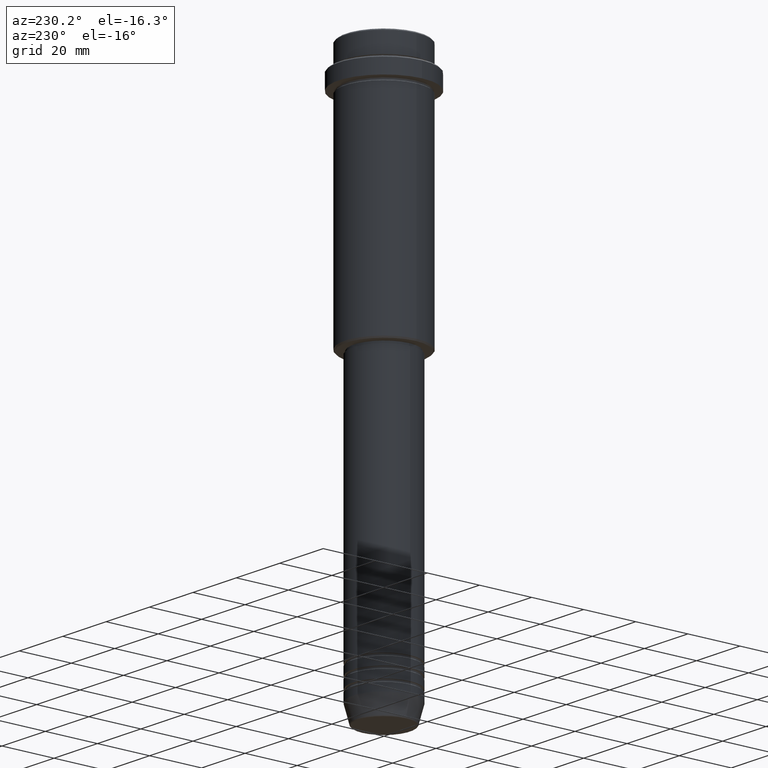
[diagram: clean part render]
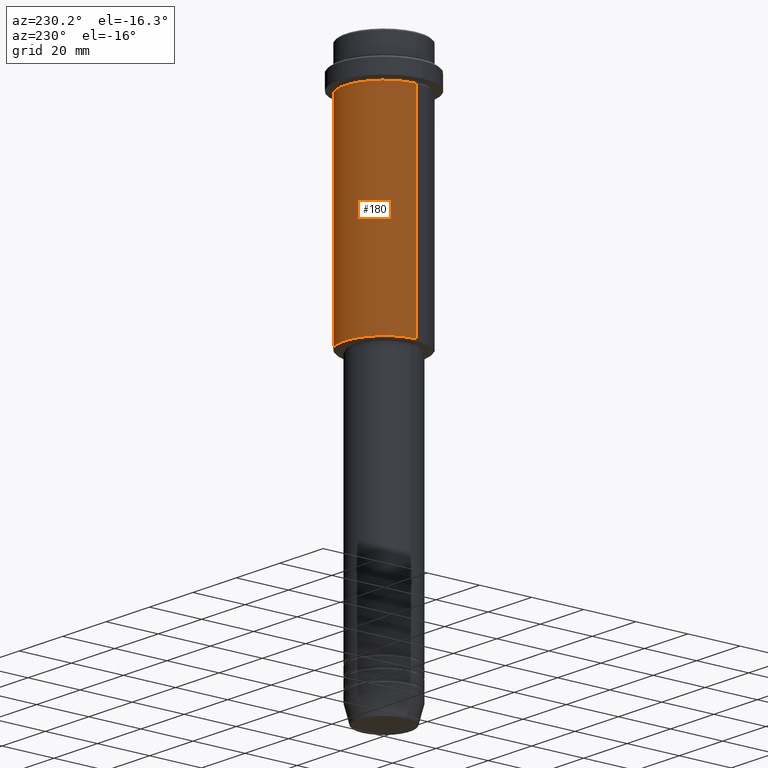
[diagram: same view with one face highlighted and labeled with its STEP entity id]
A machine part, auxiliary view. The second image highlights one B-rep face of the part: STEP entity #180.
In plain terms, the highlighted cylindrical surface (partial cylindrical patch) has radius 15 mm, axis along (-0, -0, 1).
Its self-contained STEP definition (entity closure, byte-faithful):
#4 = CARTESIAN_POINT ( 'NONE',  ( -15.00000000000000000, 1.836970198721029589E-15, 0.000000000000000000 ) ) ;
#11 = DIRECTION ( 'NONE',  ( 1.000000000000000000, 0.000000000000000000, 0.000000000000000000 ) ) ;
#30 = VERTEX_POINT ( 'NONE', #1094 ) ;
#42 = CARTESIAN_POINT ( 'NONE',  ( 0.000000000000000000, 0.000000000000000000, -94.49999999999998579 ) ) ;
#91 = CARTESIAN_POINT ( 'NONE',  ( 15.00000000000000000, 0.000000000000000000, -94.49999999999998579 ) ) ;
#92 = VECTOR ( 'NONE', #774, 1000.000000000000000 ) ;
#144 = CIRCLE ( 'NONE', #1058, 15.00000000000000000 ) ;
#172 = CARTESIAN_POINT ( 'NONE',  ( 15.00000000000000000, 0.000000000000000000, 0.000000000000000000 ) ) ;
#180 = ADVANCED_FACE ( 'NONE', ( #826 ), #694, .T. ) ;
#255 = AXIS2_PLACEMENT_3D ( 'NONE', #1314, #336, #11 ) ;
#273 = ORIENTED_EDGE ( 'NONE', *, *, #601, .F. ) ;
#336 = DIRECTION ( 'NONE',  ( -0.000000000000000000, -0.000000000000000000, 1.000000000000000000 ) ) ;
#430 = LINE ( 'NONE', #4, #92 ) ;
#583 = LINE ( 'NONE', #172, #825 ) ;
#586 = DIRECTION ( 'NONE',  ( -0.000000000000000000, -0.000000000000000000, 1.000000000000000000 ) ) ;
#594 = AXIS2_PLACEMENT_3D ( 'NONE', #596, #1162, #610 ) ;
#596 = CARTESIAN_POINT ( 'NONE',  ( 0.000000000000000000, 0.000000000000000000, 0.000000000000000000 ) ) ;
#601 = EDGE_CURVE ( 'NONE', #1221, #1139, #583, .T. ) ;
#602 = EDGE_LOOP ( 'NONE', ( #1392, #1218, #949, #273 ) ) ;
#610 = DIRECTION ( 'NONE',  ( 1.000000000000000000, 0.000000000000000000, 0.000000000000000000 ) ) ;
#660 = EDGE_CURVE ( 'NONE', #1221, #973, #144, .T. ) ;
#694 = CYLINDRICAL_SURFACE ( 'NONE', #594, 15.00000000000000000 ) ;
#699 = DIRECTION ( 'NONE',  ( -1.000000000000000000, 0.000000000000000000, 0.000000000000000000 ) ) ;
#753 = CARTESIAN_POINT ( 'NONE',  ( 15.00000000000000178, 0.000000000000000000, -16.00000000000000000 ) ) ;
#774 = DIRECTION ( 'NONE',  ( -0.000000000000000000, -0.000000000000000000, 1.000000000000000000 ) ) ;
#825 = VECTOR ( 'NONE', #919, 1000.000000000000000 ) ;
#826 = FACE_OUTER_BOUND ( 'NONE', #602, .T. ) ;
#901 = CARTESIAN_POINT ( 'NONE',  ( -15.00000000000000000, 1.836970198721029589E-15, -94.49999999999998579 ) ) ;
#919 = DIRECTION ( 'NONE',  ( -0.000000000000000000, -0.000000000000000000, 1.000000000000000000 ) ) ;
#949 = ORIENTED_EDGE ( 'NONE', *, *, #1373, .F. ) ;
#973 = VERTEX_POINT ( 'NONE', #901 ) ;
#1058 = AXIS2_PLACEMENT_3D ( 'NONE', #42, #586, #699 ) ;
#1094 = CARTESIAN_POINT ( 'NONE',  ( -15.00000000000000355, 1.836970198721029983E-15, -16.00000000000000000 ) ) ;
#1139 = VERTEX_POINT ( 'NONE', #753 ) ;
#1162 = DIRECTION ( 'NONE',  ( -0.000000000000000000, -0.000000000000000000, 1.000000000000000000 ) ) ;
#1170 = CIRCLE ( 'NONE', #255, 15.00000000000000178 ) ;
#1218 = ORIENTED_EDGE ( 'NONE', *, *, #1338, .T. ) ;
#1221 = VERTEX_POINT ( 'NONE', #91 ) ;
#1314 = CARTESIAN_POINT ( 'NONE',  ( 0.000000000000000000, 0.000000000000000000, -16.00000000000000000 ) ) ;
#1338 = EDGE_CURVE ( 'NONE', #973, #30, #430, .T. ) ;
#1373 = EDGE_CURVE ( 'NONE', #1139, #30, #1170, .T. ) ;
#1392 = ORIENTED_EDGE ( 'NONE', *, *, #660, .T. ) ;